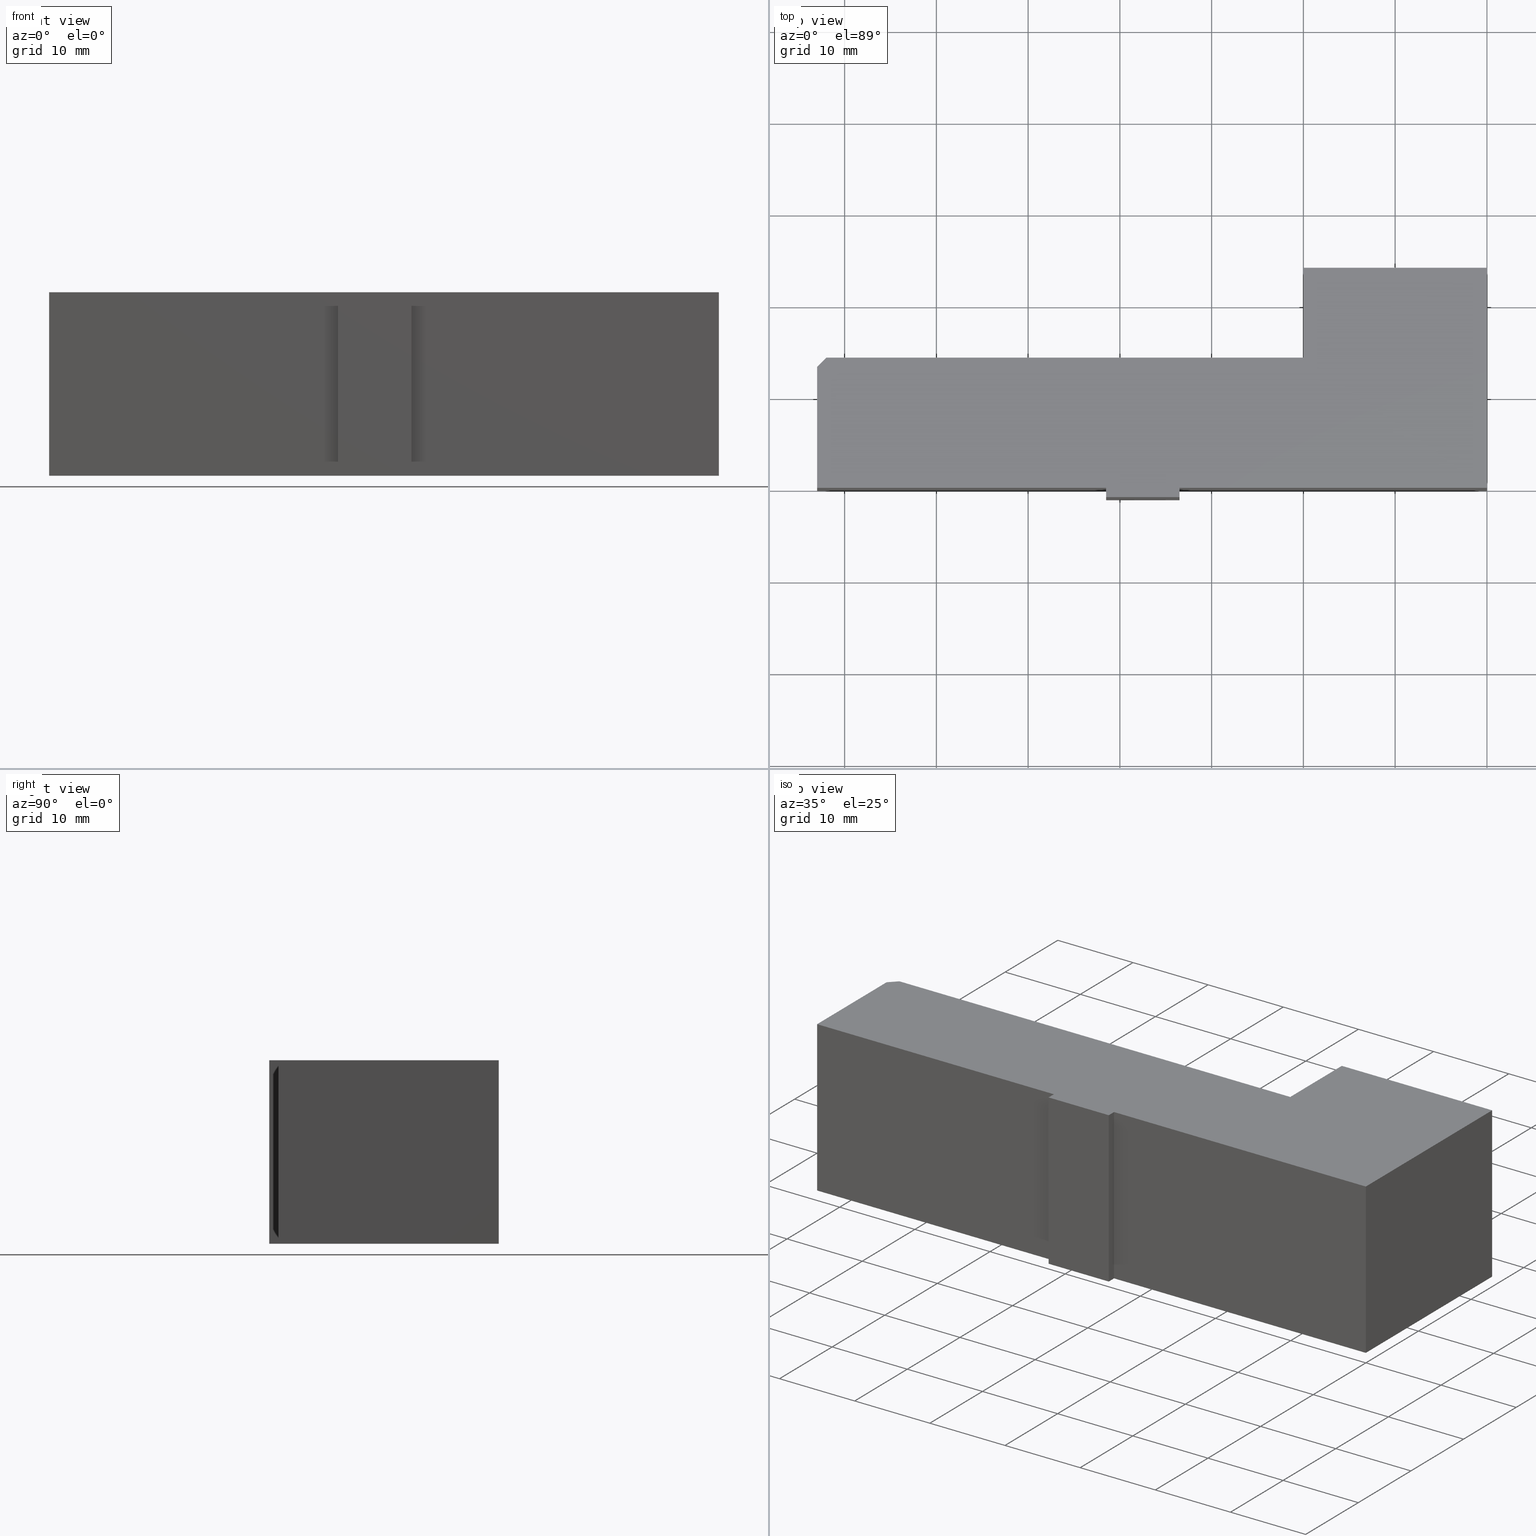
[diagram: canonical four-view strip — front | top / right | iso, engineering-drawing reading convention]
A machine part, canonical four-view strip (front | top / right | iso — engineering-drawing reading convention). The complete STEP part file that produces these views, byte-faithful:
ISO-10303-21;
HEADER;
/* Generated by software containing ST-Developer
 * from STEP Tools, Inc. (www.steptools.com) 
 */

FILE_DESCRIPTION(
/* description */ (''),
/* implementation_level */ '2;1');

FILE_NAME(
/* name */ 'E_3_01_04_16_00_WKZ-0143.stp',
/* time_stamp */ '2025-11-24T11:55:53+01:00',
/* author */ ('d.fischer'),
/* organization */ (''),
/* preprocessor_version */ 'ST-DEVELOPER v20',
/* originating_system */ 'Autodesk Inventor 2025',
/* authorisation */ '');

FILE_SCHEMA (('AUTOMOTIVE_DESIGN { 1 0 10303 214 3 1 1 }'));
ENDSEC;

DATA;
#10=MECHANICAL_DESIGN_GEOMETRIC_PRESENTATION_REPRESENTATION('',(#14,#15),
#424);
#11=SHAPE_REPRESENTATION_RELATIONSHIP('SRR','None',#431,#12);
#12=ADVANCED_BREP_SHAPE_REPRESENTATION('',(#13),#423);
#13=MANIFOLD_SOLID_BREP('Volumenk\X\F6rper1',#255);
#14=STYLED_ITEM('',(#441),#244);
#15=STYLED_ITEM('',(#440),#13);
#16=FACE_OUTER_BOUND('',#29,.T.);
#17=FACE_OUTER_BOUND('',#30,.T.);
#18=FACE_OUTER_BOUND('',#31,.T.);
#19=FACE_OUTER_BOUND('',#32,.T.);
#20=FACE_OUTER_BOUND('',#33,.T.);
#21=FACE_OUTER_BOUND('',#34,.T.);
#22=FACE_OUTER_BOUND('',#35,.T.);
#23=FACE_OUTER_BOUND('',#36,.T.);
#24=FACE_OUTER_BOUND('',#37,.T.);
#25=FACE_OUTER_BOUND('',#38,.T.);
#26=FACE_OUTER_BOUND('',#39,.T.);
#27=FACE_OUTER_BOUND('',#40,.T.);
#28=FACE_OUTER_BOUND('',#41,.T.);
#29=EDGE_LOOP('',(#163,#164,#165,#166,#167,#168,#169,#170,#171,#172,#173));
#30=EDGE_LOOP('',(#174,#175,#176,#177));
#31=EDGE_LOOP('',(#178,#179,#180,#181));
#32=EDGE_LOOP('',(#182,#183,#184,#185));
#33=EDGE_LOOP('',(#186,#187,#188,#189));
#34=EDGE_LOOP('',(#190,#191,#192,#193));
#35=EDGE_LOOP('',(#194,#195,#196,#197));
#36=EDGE_LOOP('',(#198,#199,#200,#201));
#37=EDGE_LOOP('',(#202,#203,#204,#205));
#38=EDGE_LOOP('',(#206,#207,#208,#209));
#39=EDGE_LOOP('',(#210,#211,#212,#213));
#40=EDGE_LOOP('',(#214,#215,#216,#217));
#41=EDGE_LOOP('',(#218,#219,#220,#221,#222,#223,#224,#225,#226,#227,#228));
#42=LINE('',#356,#75);
#43=LINE('',#358,#76);
#44=LINE('',#360,#77);
#45=LINE('',#362,#78);
#46=LINE('',#364,#79);
#47=LINE('',#366,#80);
#48=LINE('',#368,#81);
#49=LINE('',#370,#82);
#50=LINE('',#372,#83);
#51=LINE('',#374,#84);
#52=LINE('',#375,#85);
#53=LINE('',#379,#86);
#54=LINE('',#380,#87);
#55=LINE('',#381,#88);
#56=LINE('',#384,#89);
#57=LINE('',#385,#90);
#58=LINE('',#388,#91);
#59=LINE('',#389,#92);
#60=LINE('',#392,#93);
#61=LINE('',#393,#94);
#62=LINE('',#396,#95);
#63=LINE('',#397,#96);
#64=LINE('',#400,#97);
#65=LINE('',#401,#98);
#66=LINE('',#404,#99);
#67=LINE('',#405,#100);
#68=LINE('',#408,#101);
#69=LINE('',#409,#102);
#70=LINE('',#412,#103);
#71=LINE('',#413,#104);
#72=LINE('',#416,#105);
#73=LINE('',#417,#106);
#74=LINE('',#419,#107);
#75=VECTOR('',#295,10.);
#76=VECTOR('',#296,10.);
#77=VECTOR('',#297,10.);
#78=VECTOR('',#298,10.);
#79=VECTOR('',#299,10.);
#80=VECTOR('',#300,10.);
#81=VECTOR('',#301,10.);
#82=VECTOR('',#302,10.);
#83=VECTOR('',#303,10.);
#84=VECTOR('',#304,10.);
#85=VECTOR('',#305,10.);
#86=VECTOR('',#308,10.);
#87=VECTOR('',#309,10.);
#88=VECTOR('',#310,10.);
#89=VECTOR('',#313,10.);
#90=VECTOR('',#314,10.);
#91=VECTOR('',#317,10.);
#92=VECTOR('',#318,10.);
#93=VECTOR('',#321,10.);
#94=VECTOR('',#322,10.);
#95=VECTOR('',#325,10.);
#96=VECTOR('',#326,10.);
#97=VECTOR('',#329,10.);
#98=VECTOR('',#330,10.);
#99=VECTOR('',#333,10.);
#100=VECTOR('',#334,10.);
#101=VECTOR('',#337,10.);
#102=VECTOR('',#338,10.);
#103=VECTOR('',#341,10.);
#104=VECTOR('',#342,10.);
#105=VECTOR('',#345,10.);
#106=VECTOR('',#346,10.);
#107=VECTOR('',#349,10.);
#108=VERTEX_POINT('',#354);
#109=VERTEX_POINT('',#355);
#110=VERTEX_POINT('',#357);
#111=VERTEX_POINT('',#359);
#112=VERTEX_POINT('',#361);
#113=VERTEX_POINT('',#363);
#114=VERTEX_POINT('',#365);
#115=VERTEX_POINT('',#367);
#116=VERTEX_POINT('',#369);
#117=VERTEX_POINT('',#371);
#118=VERTEX_POINT('',#373);
#119=VERTEX_POINT('',#377);
#120=VERTEX_POINT('',#378);
#121=VERTEX_POINT('',#383);
#122=VERTEX_POINT('',#387);
#123=VERTEX_POINT('',#391);
#124=VERTEX_POINT('',#395);
#125=VERTEX_POINT('',#399);
#126=VERTEX_POINT('',#403);
#127=VERTEX_POINT('',#407);
#128=VERTEX_POINT('',#411);
#129=VERTEX_POINT('',#415);
#130=EDGE_CURVE('',#108,#109,#42,.T.);
#131=EDGE_CURVE('',#110,#108,#43,.T.);
#132=EDGE_CURVE('',#111,#110,#44,.T.);
#133=EDGE_CURVE('',#112,#111,#45,.T.);
#134=EDGE_CURVE('',#113,#112,#46,.T.);
#135=EDGE_CURVE('',#114,#113,#47,.T.);
#136=EDGE_CURVE('',#115,#114,#48,.T.);
#137=EDGE_CURVE('',#116,#115,#49,.T.);
#138=EDGE_CURVE('',#117,#116,#50,.T.);
#139=EDGE_CURVE('',#118,#117,#51,.T.);
#140=EDGE_CURVE('',#109,#118,#52,.T.);
#141=EDGE_CURVE('',#119,#120,#53,.T.);
#142=EDGE_CURVE('',#120,#111,#54,.T.);
#143=EDGE_CURVE('',#119,#110,#55,.T.);
#144=EDGE_CURVE('',#120,#121,#56,.T.);
#145=EDGE_CURVE('',#121,#112,#57,.T.);
#146=EDGE_CURVE('',#121,#122,#58,.T.);
#147=EDGE_CURVE('',#122,#113,#59,.T.);
#148=EDGE_CURVE('',#122,#123,#60,.T.);
#149=EDGE_CURVE('',#123,#114,#61,.T.);
#150=EDGE_CURVE('',#123,#124,#62,.T.);
#151=EDGE_CURVE('',#124,#115,#63,.T.);
#152=EDGE_CURVE('',#124,#125,#64,.T.);
#153=EDGE_CURVE('',#125,#116,#65,.T.);
#154=EDGE_CURVE('',#125,#126,#66,.T.);
#155=EDGE_CURVE('',#126,#117,#67,.T.);
#156=EDGE_CURVE('',#126,#127,#68,.T.);
#157=EDGE_CURVE('',#127,#118,#69,.T.);
#158=EDGE_CURVE('',#127,#128,#70,.T.);
#159=EDGE_CURVE('',#128,#109,#71,.T.);
#160=EDGE_CURVE('',#128,#129,#72,.T.);
#161=EDGE_CURVE('',#108,#129,#73,.T.);
#162=EDGE_CURVE('',#129,#119,#74,.T.);
#163=ORIENTED_EDGE('',*,*,#130,.F.);
#164=ORIENTED_EDGE('',*,*,#131,.F.);
#165=ORIENTED_EDGE('',*,*,#132,.F.);
#166=ORIENTED_EDGE('',*,*,#133,.F.);
#167=ORIENTED_EDGE('',*,*,#134,.F.);
#168=ORIENTED_EDGE('',*,*,#135,.F.);
#169=ORIENTED_EDGE('',*,*,#136,.F.);
#170=ORIENTED_EDGE('',*,*,#137,.F.);
#171=ORIENTED_EDGE('',*,*,#138,.F.);
#172=ORIENTED_EDGE('',*,*,#139,.F.);
#173=ORIENTED_EDGE('',*,*,#140,.F.);
#174=ORIENTED_EDGE('',*,*,#141,.T.);
#175=ORIENTED_EDGE('',*,*,#142,.T.);
#176=ORIENTED_EDGE('',*,*,#132,.T.);
#177=ORIENTED_EDGE('',*,*,#143,.F.);
#178=ORIENTED_EDGE('',*,*,#144,.T.);
#179=ORIENTED_EDGE('',*,*,#145,.T.);
#180=ORIENTED_EDGE('',*,*,#133,.T.);
#181=ORIENTED_EDGE('',*,*,#142,.F.);
#182=ORIENTED_EDGE('',*,*,#146,.T.);
#183=ORIENTED_EDGE('',*,*,#147,.T.);
#184=ORIENTED_EDGE('',*,*,#134,.T.);
#185=ORIENTED_EDGE('',*,*,#145,.F.);
#186=ORIENTED_EDGE('',*,*,#148,.T.);
#187=ORIENTED_EDGE('',*,*,#149,.T.);
#188=ORIENTED_EDGE('',*,*,#135,.T.);
#189=ORIENTED_EDGE('',*,*,#147,.F.);
#190=ORIENTED_EDGE('',*,*,#150,.T.);
#191=ORIENTED_EDGE('',*,*,#151,.T.);
#192=ORIENTED_EDGE('',*,*,#136,.T.);
#193=ORIENTED_EDGE('',*,*,#149,.F.);
#194=ORIENTED_EDGE('',*,*,#152,.T.);
#195=ORIENTED_EDGE('',*,*,#153,.T.);
#196=ORIENTED_EDGE('',*,*,#137,.T.);
#197=ORIENTED_EDGE('',*,*,#151,.F.);
#198=ORIENTED_EDGE('',*,*,#154,.T.);
#199=ORIENTED_EDGE('',*,*,#155,.T.);
#200=ORIENTED_EDGE('',*,*,#138,.T.);
#201=ORIENTED_EDGE('',*,*,#153,.F.);
#202=ORIENTED_EDGE('',*,*,#156,.T.);
#203=ORIENTED_EDGE('',*,*,#157,.T.);
#204=ORIENTED_EDGE('',*,*,#139,.T.);
#205=ORIENTED_EDGE('',*,*,#155,.F.);
#206=ORIENTED_EDGE('',*,*,#158,.T.);
#207=ORIENTED_EDGE('',*,*,#159,.T.);
#208=ORIENTED_EDGE('',*,*,#140,.T.);
#209=ORIENTED_EDGE('',*,*,#157,.F.);
#210=ORIENTED_EDGE('',*,*,#160,.T.);
#211=ORIENTED_EDGE('',*,*,#161,.F.);
#212=ORIENTED_EDGE('',*,*,#130,.T.);
#213=ORIENTED_EDGE('',*,*,#159,.F.);
#214=ORIENTED_EDGE('',*,*,#162,.T.);
#215=ORIENTED_EDGE('',*,*,#143,.T.);
#216=ORIENTED_EDGE('',*,*,#131,.T.);
#217=ORIENTED_EDGE('',*,*,#161,.T.);
#218=ORIENTED_EDGE('',*,*,#141,.F.);
#219=ORIENTED_EDGE('',*,*,#162,.F.);
#220=ORIENTED_EDGE('',*,*,#160,.F.);
#221=ORIENTED_EDGE('',*,*,#158,.F.);
#222=ORIENTED_EDGE('',*,*,#156,.F.);
#223=ORIENTED_EDGE('',*,*,#154,.F.);
#224=ORIENTED_EDGE('',*,*,#152,.F.);
#225=ORIENTED_EDGE('',*,*,#150,.F.);
#226=ORIENTED_EDGE('',*,*,#148,.F.);
#227=ORIENTED_EDGE('',*,*,#146,.F.);
#228=ORIENTED_EDGE('',*,*,#144,.F.);
#229=PLANE('',#278);
#230=PLANE('',#279);
#231=PLANE('',#280);
#232=PLANE('',#281);
#233=PLANE('',#282);
#234=PLANE('',#283);
#235=PLANE('',#284);
#236=PLANE('',#285);
#237=PLANE('',#286);
#238=PLANE('',#287);
#239=PLANE('',#288);
#240=PLANE('',#289);
#241=PLANE('',#290);
#242=ADVANCED_FACE('',(#16),#229,.F.);
#243=ADVANCED_FACE('',(#17),#230,.T.);
#244=ADVANCED_FACE('',(#18),#231,.T.);
#245=ADVANCED_FACE('',(#19),#232,.T.);
#246=ADVANCED_FACE('',(#20),#233,.T.);
#247=ADVANCED_FACE('',(#21),#234,.T.);
#248=ADVANCED_FACE('',(#22),#235,.T.);
#249=ADVANCED_FACE('',(#23),#236,.T.);
#250=ADVANCED_FACE('',(#24),#237,.T.);
#251=ADVANCED_FACE('',(#25),#238,.T.);
#252=ADVANCED_FACE('',(#26),#239,.T.);
#253=ADVANCED_FACE('',(#27),#240,.T.);
#254=ADVANCED_FACE('',(#28),#241,.T.);
#255=CLOSED_SHELL('',(#242,#243,#244,#245,#246,#247,#248,#249,#250,#251,
#252,#253,#254));
#256=DERIVED_UNIT_ELEMENT(#259,1.);
#257=DERIVED_UNIT_ELEMENT(#426,-3.);
#258=DIMENSIONAL_EXPONENTS(0.,1.,0.,0.,0.,0.,0.);
#259=(
CONVERSION_BASED_UNIT('gram',#261)
MASS_UNIT()
NAMED_UNIT(#258)
);
#260=(
MASS_UNIT()
NAMED_UNIT(*)
SI_UNIT(.KILO.,.GRAM.)
);
#261=MASS_MEASURE_WITH_UNIT(MASS_MEASURE(0.001),#260);
#262=DERIVED_UNIT((#256,#257));
#263=MEASURE_REPRESENTATION_ITEM('density measure',
POSITIVE_RATIO_MEASURE(8.03),#262);
#264=PROPERTY_DEFINITION_REPRESENTATION(#269,#266);
#265=PROPERTY_DEFINITION_REPRESENTATION(#270,#267);
#266=REPRESENTATION('material name',(#268),#423);
#267=REPRESENTATION('density',(#263),#423);
#268=DESCRIPTIVE_REPRESENTATION_ITEM('1.4301','1.4301');
#269=PROPERTY_DEFINITION('material property','material name',#433);
#270=PROPERTY_DEFINITION('material property','density of part',#433);
#271=DATE_TIME_ROLE('creation_date');
#272=APPLIED_DATE_AND_TIME_ASSIGNMENT(#273,#271,(#433));
#273=DATE_AND_TIME(#274,#275);
#274=CALENDAR_DATE(2011,18,10);
#275=LOCAL_TIME(0,0,0.,#276);
#276=COORDINATED_UNIVERSAL_TIME_OFFSET(0,0,.BEHIND.);
#277=AXIS2_PLACEMENT_3D('',#352,#291,#292);
#278=AXIS2_PLACEMENT_3D('',#353,#293,#294);
#279=AXIS2_PLACEMENT_3D('',#376,#306,#307);
#280=AXIS2_PLACEMENT_3D('',#382,#311,#312);
#281=AXIS2_PLACEMENT_3D('',#386,#315,#316);
#282=AXIS2_PLACEMENT_3D('',#390,#319,#320);
#283=AXIS2_PLACEMENT_3D('',#394,#323,#324);
#284=AXIS2_PLACEMENT_3D('',#398,#327,#328);
#285=AXIS2_PLACEMENT_3D('',#402,#331,#332);
#286=AXIS2_PLACEMENT_3D('',#406,#335,#336);
#287=AXIS2_PLACEMENT_3D('',#410,#339,#340);
#288=AXIS2_PLACEMENT_3D('',#414,#343,#344);
#289=AXIS2_PLACEMENT_3D('',#418,#347,#348);
#290=AXIS2_PLACEMENT_3D('',#420,#350,#351);
#291=DIRECTION('axis',(0.,0.,1.));
#292=DIRECTION('refdir',(1.,0.,0.));
#293=DIRECTION('center_axis',(0.,0.,1.));
#294=DIRECTION('ref_axis',(1.,0.,0.));
#295=DIRECTION('',(-2.77555756156289E-16,1.,0.));
#296=DIRECTION('',(1.,1.33599599045378E-16,0.));
#297=DIRECTION('',(0.,1.,0.));
#298=DIRECTION('',(1.,1.04083408558608E-16,0.));
#299=DIRECTION('',(0.,-1.,0.));
#300=DIRECTION('',(1.,1.22757173393725E-16,0.));
#301=DIRECTION('',(0.,-1.,0.));
#302=DIRECTION('',(-0.707106781186549,-0.707106781186546,0.));
#303=DIRECTION('',(-1.,-2.56205313375036E-16,0.));
#304=DIRECTION('',(4.53152254949043E-16,-1.,0.));
#305=DIRECTION('',(-1.,-2.22044604925031E-16,0.));
#306=DIRECTION('center_axis',(1.,0.,0.));
#307=DIRECTION('ref_axis',(0.,0.,-1.));
#308=DIRECTION('',(0.,-1.,0.));
#309=DIRECTION('',(0.,0.,-1.));
#310=DIRECTION('',(0.,0.,-1.));
#311=DIRECTION('center_axis',(1.04083408558608E-16,-1.,0.));
#312=DIRECTION('ref_axis',(0.,0.,-1.));
#313=DIRECTION('',(-1.,-1.04083408558608E-16,0.));
#314=DIRECTION('',(0.,0.,-1.));
#315=DIRECTION('center_axis',(-1.,0.,0.));
#316=DIRECTION('ref_axis',(0.,0.,1.));
#317=DIRECTION('',(0.,1.,0.));
#318=DIRECTION('',(0.,0.,-1.));
#319=DIRECTION('center_axis',(1.22757173393725E-16,-1.,0.));
#320=DIRECTION('ref_axis',(0.,0.,-1.));
#321=DIRECTION('',(-1.,-1.22757173393725E-16,0.));
#322=DIRECTION('',(0.,0.,-1.));
#323=DIRECTION('center_axis',(-1.,0.,0.));
#324=DIRECTION('ref_axis',(0.,0.,1.));
#325=DIRECTION('',(0.,1.,0.));
#326=DIRECTION('',(0.,0.,-1.));
#327=DIRECTION('center_axis',(-0.707106781186546,0.707106781186549,0.));
#328=DIRECTION('ref_axis',(0.,0.,1.));
#329=DIRECTION('',(0.707106781186549,0.707106781186546,0.));
#330=DIRECTION('',(0.,0.,-1.));
#331=DIRECTION('center_axis',(-2.56205313375036E-16,1.,0.));
#332=DIRECTION('ref_axis',(0.,0.,1.));
#333=DIRECTION('',(1.,2.56205313375036E-16,0.));
#334=DIRECTION('',(0.,0.,-1.));
#335=DIRECTION('center_axis',(-1.,-4.53152254949043E-16,0.));
#336=DIRECTION('ref_axis',(0.,0.,1.));
#337=DIRECTION('',(-4.53152254949043E-16,1.,0.));
#338=DIRECTION('',(0.,0.,-1.));
#339=DIRECTION('center_axis',(-2.22044604925031E-16,1.,0.));
#340=DIRECTION('ref_axis',(0.,0.,1.));
#341=DIRECTION('',(1.,2.22044604925031E-16,0.));
#342=DIRECTION('',(0.,0.,-1.));
#343=DIRECTION('center_axis',(1.,2.77555756156289E-16,0.));
#344=DIRECTION('ref_axis',(0.,0.,-1.));
#345=DIRECTION('',(2.77555756156289E-16,-1.,0.));
#346=DIRECTION('',(0.,0.,1.));
#347=DIRECTION('center_axis',(1.33599599045378E-16,-1.,0.));
#348=DIRECTION('ref_axis',(0.,0.,-1.));
#349=DIRECTION('',(-1.,-1.33599599045378E-16,0.));
#350=DIRECTION('center_axis',(0.,0.,1.));
#351=DIRECTION('ref_axis',(1.,0.,0.));
#352=CARTESIAN_POINT('',(0.,0.,0.));
#353=CARTESIAN_POINT('Origin',(-33.7418162326635,9.16552943183342,-10.));
#354=CARTESIAN_POINT('',(2.22044604925031E-15,2.22044604925031E-15,-10.));
#355=CARTESIAN_POINT('',(-4.44089209850063E-15,24.,-10.));
#356=CARTESIAN_POINT('',(-4.44089209850063E-15,24.,-10.));
#357=CARTESIAN_POINT('',(-33.5,-2.25514051876985E-15,-10.));
#358=CARTESIAN_POINT('',(2.22044604925031E-15,2.22044604925031E-15,-10.));
#359=CARTESIAN_POINT('',(-33.5,-1.,-10.));
#360=CARTESIAN_POINT('',(-33.5,-2.25514051876985E-15,-10.));
#361=CARTESIAN_POINT('',(-41.5,-1.,-10.));
#362=CARTESIAN_POINT('',(-33.5,-1.,-10.));
#363=CARTESIAN_POINT('',(-41.5,1.11022302462516E-15,-10.));
#364=CARTESIAN_POINT('',(-41.5,-1.,-10.));
#365=CARTESIAN_POINT('',(-73.,-2.75662793727719E-15,-10.));
#366=CARTESIAN_POINT('',(-41.5,1.11022302462516E-15,-10.));
#367=CARTESIAN_POINT('',(-73.,13.2,-10.));
#368=CARTESIAN_POINT('',(-73.,-2.75662793727719E-15,-10.));
#369=CARTESIAN_POINT('',(-72.,14.2,-10.));
#370=CARTESIAN_POINT('',(-73.,13.2,-10.));
#371=CARTESIAN_POINT('',(-20.,14.2,-10.));
#372=CARTESIAN_POINT('',(-72.,14.2,-10.));
#373=CARTESIAN_POINT('',(-20.,24.,-10.));
#374=CARTESIAN_POINT('',(-20.,14.2,-10.));
#375=CARTESIAN_POINT('',(-20.,24.,-10.));
#376=CARTESIAN_POINT('Origin',(-33.5,-2.25514051876985E-15,0.));
#377=CARTESIAN_POINT('',(-33.5,-2.25514051876985E-15,10.));
#378=CARTESIAN_POINT('',(-33.5,-1.,10.));
#379=CARTESIAN_POINT('',(-33.5,-2.25514051876985E-15,10.));
#380=CARTESIAN_POINT('',(-33.5,-1.,0.));
#381=CARTESIAN_POINT('',(-33.5,-2.25514051876985E-15,0.));
#382=CARTESIAN_POINT('Origin',(-33.5,-1.,0.));
#383=CARTESIAN_POINT('',(-41.5,-1.,10.));
#384=CARTESIAN_POINT('',(-33.5,-1.,10.));
#385=CARTESIAN_POINT('',(-41.5,-1.,0.));
#386=CARTESIAN_POINT('Origin',(-41.5,-1.,0.));
#387=CARTESIAN_POINT('',(-41.5,1.11022302462516E-15,10.));
#388=CARTESIAN_POINT('',(-41.5,-1.,10.));
#389=CARTESIAN_POINT('',(-41.5,1.11022302462516E-15,0.));
#390=CARTESIAN_POINT('Origin',(-41.5,1.11022302462516E-15,0.));
#391=CARTESIAN_POINT('',(-73.,-2.75662793727719E-15,10.));
#392=CARTESIAN_POINT('',(-41.5,1.11022302462516E-15,10.));
#393=CARTESIAN_POINT('',(-73.,-2.75662793727719E-15,0.));
#394=CARTESIAN_POINT('Origin',(-73.,-2.75662793727719E-15,0.));
#395=CARTESIAN_POINT('',(-73.,13.2,10.));
#396=CARTESIAN_POINT('',(-73.,-2.75662793727719E-15,10.));
#397=CARTESIAN_POINT('',(-73.,13.2,0.));
#398=CARTESIAN_POINT('Origin',(-73.,13.2,0.));
#399=CARTESIAN_POINT('',(-72.,14.2,10.));
#400=CARTESIAN_POINT('',(-73.,13.2,10.));
#401=CARTESIAN_POINT('',(-72.,14.2,0.));
#402=CARTESIAN_POINT('Origin',(-72.,14.2,0.));
#403=CARTESIAN_POINT('',(-20.,14.2,10.));
#404=CARTESIAN_POINT('',(-72.,14.2,10.));
#405=CARTESIAN_POINT('',(-20.,14.2,0.));
#406=CARTESIAN_POINT('Origin',(-20.,14.2,0.));
#407=CARTESIAN_POINT('',(-20.,24.,10.));
#408=CARTESIAN_POINT('',(-20.,14.2,10.));
#409=CARTESIAN_POINT('',(-20.,24.,0.));
#410=CARTESIAN_POINT('Origin',(-20.,24.,0.));
#411=CARTESIAN_POINT('',(-4.44089209850063E-15,24.,10.));
#412=CARTESIAN_POINT('',(-20.,24.,10.));
#413=CARTESIAN_POINT('',(-4.44089209850063E-15,24.,0.));
#414=CARTESIAN_POINT('Origin',(-4.44089209850063E-15,24.,0.));
#415=CARTESIAN_POINT('',(2.22044604925031E-15,2.22044604925031E-15,10.));
#416=CARTESIAN_POINT('',(-4.44089209850063E-15,24.,10.));
#417=CARTESIAN_POINT('',(2.22044604925031E-15,2.22044604925031E-15,0.));
#418=CARTESIAN_POINT('Origin',(2.22044604925031E-15,2.22044604925031E-15,
0.));
#419=CARTESIAN_POINT('',(2.22044604925031E-15,2.22044604925031E-15,10.));
#420=CARTESIAN_POINT('Origin',(-33.7418162326635,9.16552943183342,10.));
#421=UNCERTAINTY_MEASURE_WITH_UNIT(LENGTH_MEASURE(0.01),#425,
'DISTANCE_ACCURACY_VALUE',
'Maximum model space distance between geometric entities at asserted c
onnectivities');
#422=UNCERTAINTY_MEASURE_WITH_UNIT(LENGTH_MEASURE(0.01),#425,
'DISTANCE_ACCURACY_VALUE',
'Maximum model space distance between geometric entities at asserted c
onnectivities');
#423=(
GEOMETRIC_REPRESENTATION_CONTEXT(3)
GLOBAL_UNCERTAINTY_ASSIGNED_CONTEXT((#421))
GLOBAL_UNIT_ASSIGNED_CONTEXT((#425,#427,#428))
REPRESENTATION_CONTEXT('','3D')
);
#424=(
GEOMETRIC_REPRESENTATION_CONTEXT(3)
GLOBAL_UNCERTAINTY_ASSIGNED_CONTEXT((#422))
GLOBAL_UNIT_ASSIGNED_CONTEXT((#425,#427,#428))
REPRESENTATION_CONTEXT('','3D')
);
#425=(
LENGTH_UNIT()
NAMED_UNIT(*)
SI_UNIT(.MILLI.,.METRE.)
);
#426=(
LENGTH_UNIT()
NAMED_UNIT(*)
SI_UNIT(.CENTI.,.METRE.)
);
#427=(
NAMED_UNIT(*)
PLANE_ANGLE_UNIT()
SI_UNIT($,.RADIAN.)
);
#428=(
NAMED_UNIT(*)
SI_UNIT($,.STERADIAN.)
SOLID_ANGLE_UNIT()
);
#429=SHAPE_DEFINITION_REPRESENTATION(#430,#431);
#430=PRODUCT_DEFINITION_SHAPE('',$,#433);
#431=SHAPE_REPRESENTATION('',(#277),#423);
#432=PRODUCT_DEFINITION_CONTEXT('part definition',#437,'design');
#433=PRODUCT_DEFINITION('WKZ-0143','E_3_01_04_16_00_WKZ-0143',#434,#432);
#434=PRODUCT_DEFINITION_FORMATION('',$,#439);
#435=PRODUCT_RELATED_PRODUCT_CATEGORY('E_3_01_04_16_00_WKZ-0143',
'E_3_01_04_16_00_WKZ-0143',(#439));
#436=APPLICATION_PROTOCOL_DEFINITION('international standard',
'automotive_design',2009,#437);
#437=APPLICATION_CONTEXT(
'Core Data for Automotive Mechanical Design Process');
#438=PRODUCT_CONTEXT('part definition',#437,'mechanical');
#439=PRODUCT('WKZ-0143','E_3_01_04_16_00_WKZ-0143',$,(#438));
#440=PRESENTATION_STYLE_ASSIGNMENT((#442));
#441=PRESENTATION_STYLE_ASSIGNMENT((#443));
#442=SURFACE_STYLE_USAGE(.BOTH.,#446);
#443=SURFACE_STYLE_USAGE(.BOTH.,#447);
#444=SURFACE_STYLE_RENDERING_WITH_PROPERTIES($,#454,(#445));
#445=SURFACE_STYLE_TRANSPARENT(0.);
#446=SURFACE_SIDE_STYLE('',(#448,#444));
#447=SURFACE_SIDE_STYLE('',(#449));
#448=SURFACE_STYLE_FILL_AREA(#450);
#449=SURFACE_STYLE_FILL_AREA(#451);
#450=FILL_AREA_STYLE('',(#452));
#451=FILL_AREA_STYLE('',(#453));
#452=FILL_AREA_STYLE_COLOUR('',#454);
#453=FILL_AREA_STYLE_COLOUR('',#455);
#454=COLOUR_RGB('',0.92156862745098,0.92156862745098,0.92156862745098);
#455=COLOUR_RGB('',0.16078431372549,0.16078431372549,0.16078431372549);
ENDSEC;
END-ISO-10303-21;
